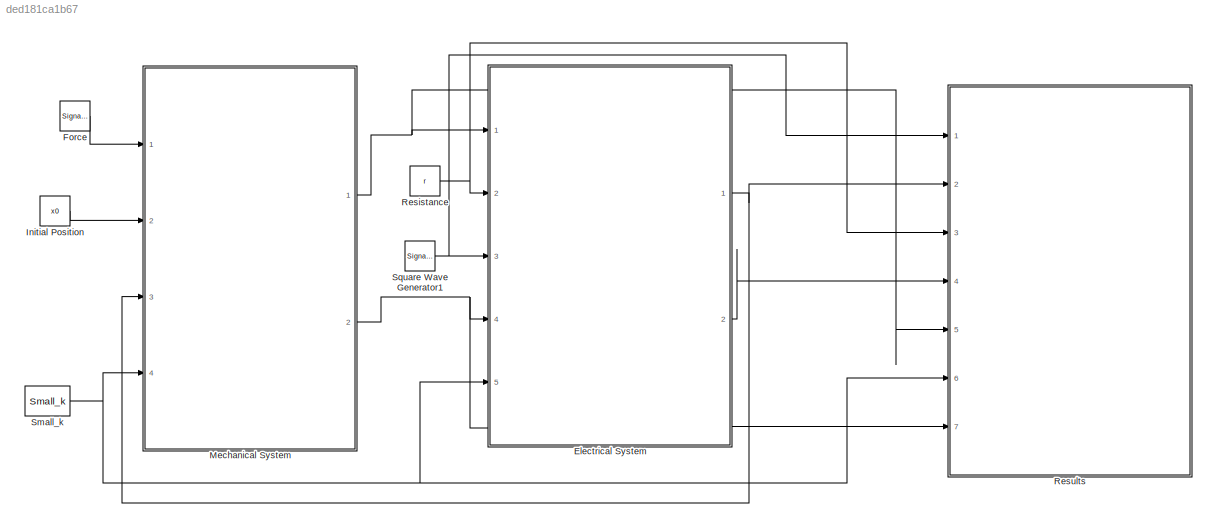
MODEL slx_ded181ca1b67
KIND model
CONFIG AbsTol = auto
CONFIG EnableMultiTasking = off
CONFIG FixedStep = auto
CONFIG MaxStep = auto
CONFIG MinStep = auto
CONFIG RelTol = 1e-3
CONFIG SampleTimeConstraint = Unconstrained
CONFIG SolverName = VariableStepAuto
CONFIG StartTime = 0.0
CONFIG StopTime = 1
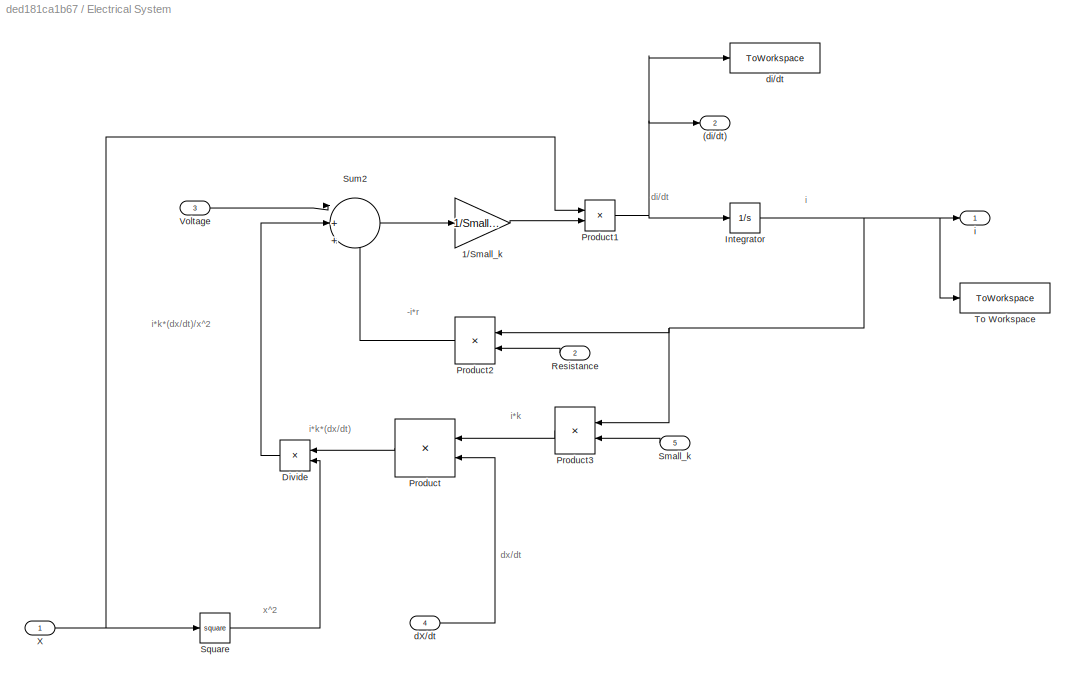
BLOCK [SubSystem] Electrical System
  Ports = [5, 2]
  RequestExecContextInheritance = off
BLOCK [Outport] Electrical System/(di//dt)
  Port = 2
BLOCK [Gain] Electrical System/1//Small_k
  Gain = 1/Small_k
BLOCK [Product] Electrical System/Divide
  Inputs = */
  Ports = [2, 1]
BLOCK [Integrator] Electrical System/Integrator
  Ports = [1, 1]
BLOCK [Product] Electrical System/Product
  Ports = [2, 1]
BLOCK [Product] Electrical System/Product1
  Ports = [2, 1]
BLOCK [Product] Electrical System/Product2
  Ports = [2, 1]
BLOCK [Product] Electrical System/Product3
  Ports = [2, 1]
BLOCK [Inport] Electrical System/Resistance
  Port = 2
BLOCK [Inport] Electrical System/Small_k
  Port = 5
BLOCK [Math] Electrical System/Square
  Operator = square
  Ports = [1, 1]
BLOCK [Sum] Electrical System/Sum2
  Inputs = |+++
  Ports = [3, 1]
BLOCK [ToWorkspace] Electrical System/To Workspace
  FixptAsFi = on
  MaxDataPoints = inf
  Ports = [1]
  SampleTime = -1
  VariableName = i
BLOCK [Inport] Electrical System/Voltage
  Port = 3
BLOCK [Inport] Electrical System/X
BLOCK [Inport] Electrical System/dX//dt
  Port = 4
BLOCK [ToWorkspace] Electrical System/di//dt
  FixptAsFi = on
  MaxDataPoints = inf
  Ports = [1]
  SampleTime = -1
  VariableName = di_dt
BLOCK [Outport] Electrical System/i
BLOCK [SignalGenerator] Force
  Amplitude = 4
  Ports = [0, 1]
  Units = rad/sec
  WaveForm = square
BLOCK [Constant] Initial Position
  Value = x0
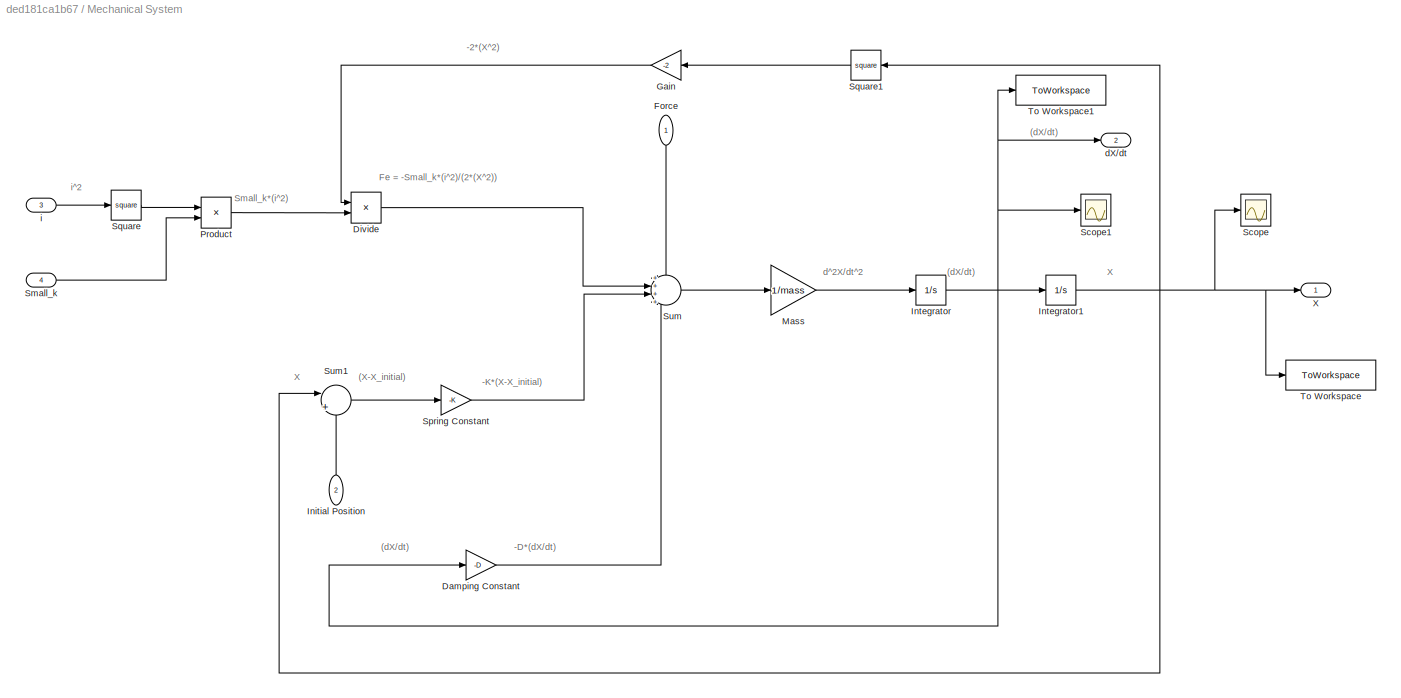
BLOCK [SubSystem] Mechanical System
  Ports = [4, 2]
  RequestExecContextInheritance = off
BLOCK [Gain] Mechanical System/Damping Constant
  Gain = -D
BLOCK [Product] Mechanical System/Divide
  Inputs = /*
  Ports = [2, 1]
BLOCK [Inport] Mechanical System/Force
  NameLocation = left
BLOCK [Gain] Mechanical System/Gain
  Gain = -2
BLOCK [Inport] Mechanical System/Initial Position
  Port = 2
BLOCK [Integrator] Mechanical System/Integrator
  Ports = [1, 1]
BLOCK [Integrator] Mechanical System/Integrator1
  InitialCondition = 0.000001
  Ports = [1, 1]
BLOCK [Gain] Mechanical System/Mass
  Gain = 1/mass
BLOCK [Product] Mechanical System/Product
  Ports = [2, 1]
BLOCK [Scope] Mechanical System/Scope
  Floating = off
  NumInputPorts = 1
  Ports = [1]
  ScopeSpecificationString = Simulink.scopes.TimeScopeBlockCfg('CurrentConfiguration', extmgr.ConfigurationSet(extmgr.Configuration('Core','General UI',true),extmgr.Configuration('Core','Source UI',true),extmgr.Configuration('Sources','WiredSimulink',true),extmgr.Configuration('Visuals','Time Domain',true),extmgr.Configuration('Tools','Plot Navigation',true),extmgr.Configuration('Tools','Measurements',true)),'Version','2021b'...<+1ch>
BLOCK [Scope] Mechanical System/Scope1
  Floating = off
  NumInputPorts = 1
  Ports = [1]
  ScopeSpecificationString = Simulink.scopes.TimeScopeBlockCfg('CurrentConfiguration', extmgr.ConfigurationSet(extmgr.Configuration('Core','General UI',true),extmgr.Configuration('Core','Source UI',true),extmgr.Configuration('Sources','WiredSimulink',true,'DataLoggingVariableName','ScopeData1'),extmgr.Configuration('Visuals','Time Domain',true),extmgr.Configuration('Tools','Plot Navigation',true),extmgr.Configuration('Tools',...<+40ch>
BLOCK [Inport] Mechanical System/Small_k
  Port = 4
BLOCK [Gain] Mechanical System/Spring Constant
  Gain = -K
BLOCK [Math] Mechanical System/Square
  Operator = square
  Ports = [1, 1]
BLOCK [Math] Mechanical System/Square1
  Operator = square
  Ports = [1, 1]
BLOCK [Sum] Mechanical System/Sum
  Inputs = ++++
  Ports = [4, 1]
BLOCK [Sum] Mechanical System/Sum1
  Inputs = |++
  Ports = [2, 1]
BLOCK [ToWorkspace] Mechanical System/To Workspace
  FixptAsFi = on
  MaxDataPoints = inf
  Ports = [1]
  SampleTime = -1
  VariableName = X
BLOCK [ToWorkspace] Mechanical System/To Workspace1
  FixptAsFi = on
  MaxDataPoints = inf
  Ports = [1]
  SampleTime = -1
  VariableName = velocity
BLOCK [Outport] Mechanical System/X
BLOCK [Outport] Mechanical System/dX//dt
  Port = 2
BLOCK [Inport] Mechanical System/i
  Port = 3
BLOCK [Constant] Resistance
  Value = r
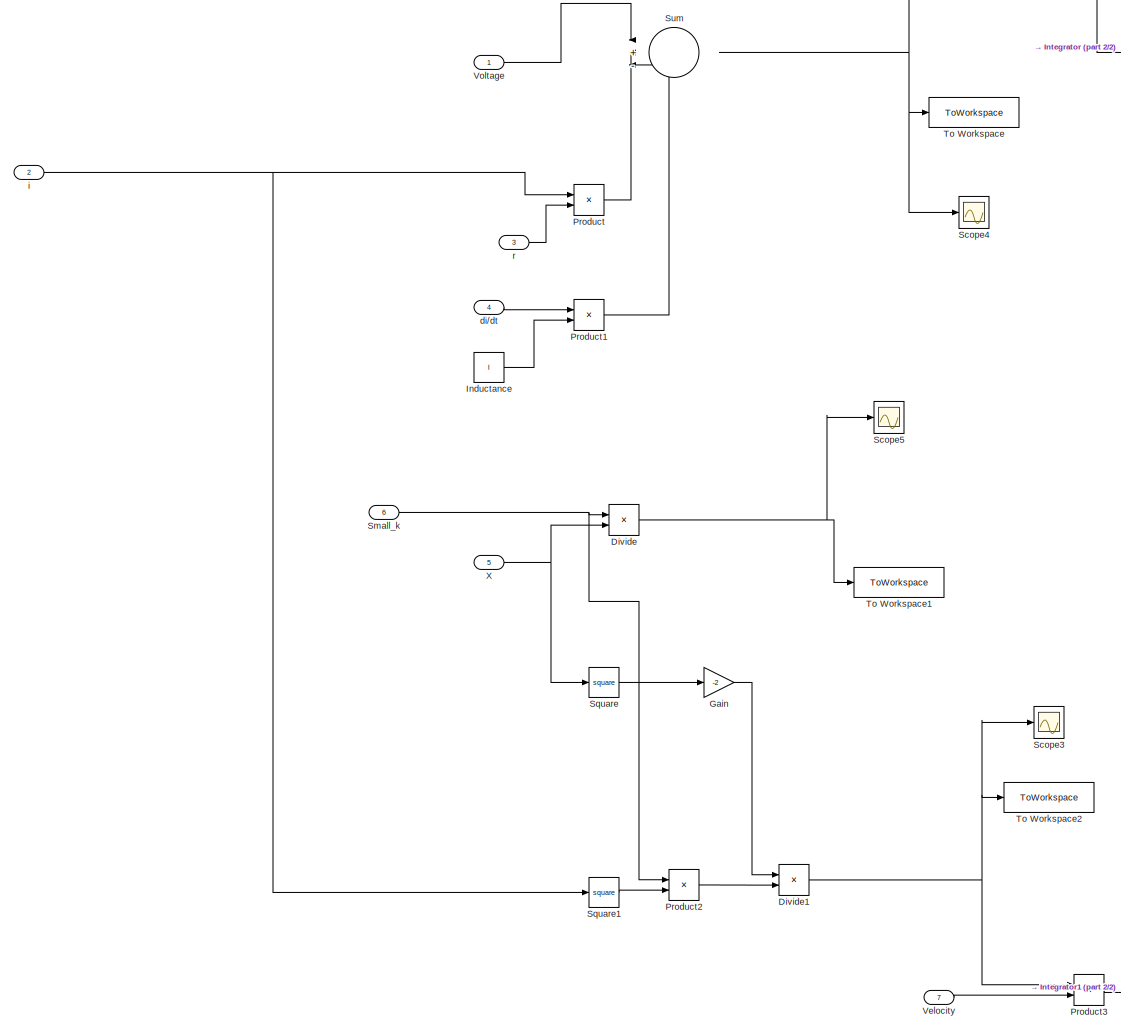
[diagram: Results - part 1/2, center side, full height]
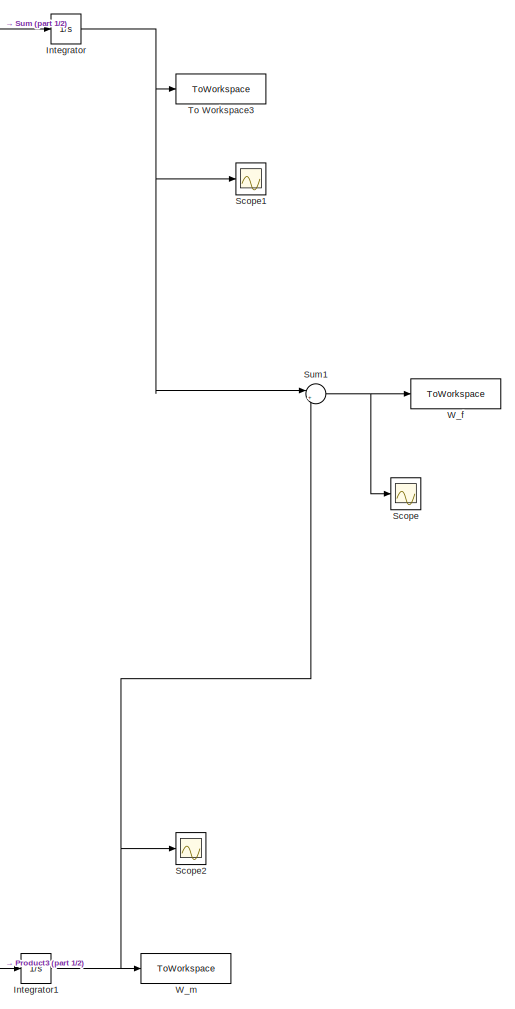
[diagram: Results - part 2/2, right side, full height]
BLOCK [SubSystem] Results
  Ports = [7]
  RequestExecContextInheritance = off
BLOCK [Product] Results/Divide
  Inputs = */
  Ports = [2, 1]
BLOCK [Product] Results/Divide1
  Inputs = /*
  Ports = [2, 1]
BLOCK [Gain] Results/Gain
  Gain = -2
BLOCK [Constant] Results/Inductance
  Value = l
BLOCK [Integrator] Results/Integrator
  Ports = [1, 1]
BLOCK [Integrator] Results/Integrator1
  Ports = [1, 1]
BLOCK [Product] Results/Product
  Ports = [2, 1]
BLOCK [Product] Results/Product1
  Ports = [2, 1]
BLOCK [Product] Results/Product2
  Ports = [2, 1]
BLOCK [Product] Results/Product3
  Ports = [2, 1]
BLOCK [Scope] Results/Scope
  Floating = off
  NumInputPorts = 1
  Ports = [1]
  ScopeSpecificationString = Simulink.scopes.TimeScopeBlockCfg('CurrentConfiguration', extmgr.ConfigurationSet(extmgr.Configuration('Core','General UI',true),extmgr.Configuration('Core','Source UI',true),extmgr.Configuration('Sources','WiredSimulink',true,'DataLoggingVariableName','ScopeData1'),extmgr.Configuration('Visuals','Time Domain',true),extmgr.Configuration('Tools','Plot Navigation',true),extmgr.Configuration('Tools',...<+40ch>
BLOCK [Scope] Results/Scope1
  Floating = off
  NumInputPorts = 1
  Ports = [1]
  ScopeSpecificationString = Simulink.scopes.TimeScopeBlockCfg('CurrentConfiguration', extmgr.ConfigurationSet(extmgr.Configuration('Core','General UI',true),extmgr.Configuration('Core','Source UI',true),extmgr.Configuration('Sources','WiredSimulink',true,'DataLoggingVariableName','ScopeData2'),extmgr.Configuration('Visuals','Time Domain',true),extmgr.Configuration('Tools','Plot Navigation',true),extmgr.Configuration('Tools',...<+40ch>
BLOCK [Scope] Results/Scope2
  Floating = off
  NumInputPorts = 1
  Ports = [1]
  ScopeSpecificationString = Simulink.scopes.TimeScopeBlockCfg('CurrentConfiguration', extmgr.ConfigurationSet(extmgr.Configuration('Core','General UI',true),extmgr.Configuration('Core','Source UI',true),extmgr.Configuration('Sources','WiredSimulink',true,'DataLoggingVariableName','ScopeData3'),extmgr.Configuration('Visuals','Time Domain',true),extmgr.Configuration('Tools','Plot Navigation',true),extmgr.Configuration('Tools',...<+40ch>
BLOCK [Scope] Results/Scope3
  Floating = off
  NumInputPorts = 1
  Ports = [1]
  ScopeSpecificationString = Simulink.scopes.TimeScopeBlockCfg('CurrentConfiguration', extmgr.ConfigurationSet(extmgr.Configuration('Core','General UI',true),extmgr.Configuration('Core','Source UI',true),extmgr.Configuration('Sources','WiredSimulink',true,'DataLoggingVariableName','ScopeData4'),extmgr.Configuration('Visuals','Time Domain',true),extmgr.Configuration('Tools','Plot Navigation',true),extmgr.Configuration('Tools',...<+40ch>
BLOCK [Scope] Results/Scope4
  Floating = off
  NumInputPorts = 1
  Ports = [1]
  ScopeSpecificationString = Simulink.scopes.TimeScopeBlockCfg('CurrentConfiguration', extmgr.ConfigurationSet(extmgr.Configuration('Core','General UI',true),extmgr.Configuration('Core','Source UI',true),extmgr.Configuration('Sources','WiredSimulink',true,'DataLoggingVariableName','ScopeData5'),extmgr.Configuration('Visuals','Time Domain',true),extmgr.Configuration('Tools','Plot Navigation',true),extmgr.Configuration('Tools',...<+40ch>
BLOCK [Scope] Results/Scope5
  Floating = off
  NumInputPorts = 1
  Ports = [1]
  ScopeSpecificationString = Simulink.scopes.TimeScopeBlockCfg('CurrentConfiguration', extmgr.ConfigurationSet(extmgr.Configuration('Core','General UI',true),extmgr.Configuration('Core','Source UI',true),extmgr.Configuration('Sources','WiredSimulink',true,'DataLoggingVariableName','ScopeData6'),extmgr.Configuration('Visuals','Time Domain',true),extmgr.Configuration('Tools','Plot Navigation',true),extmgr.Configuration('Tools',...<+40ch>
BLOCK [Inport] Results/Small_k
  Port = 6
BLOCK [Math] Results/Square
  Operator = square
  Ports = [1, 1]
BLOCK [Math] Results/Square1
  Operator = square
  Ports = [1, 1]
BLOCK [Sum] Results/Sum
  Inputs = |+--
  Ports = [3, 1]
BLOCK [Sum] Results/Sum1
  Inputs = |++
  Ports = [2, 1]
BLOCK [ToWorkspace] Results/To Workspace
  FixptAsFi = on
  MaxDataPoints = inf
  Ports = [1]
  SampleTime = -1
  VariableName = ef
BLOCK [ToWorkspace] Results/To Workspace1
  FixptAsFi = on
  MaxDataPoints = inf
  Ports = [1]
  SampleTime = -1
  VariableName = Lamda
BLOCK [ToWorkspace] Results/To Workspace2
  FixptAsFi = on
  MaxDataPoints = inf
  Ports = [1]
  SampleTime = -1
  VariableName = fe
BLOCK [ToWorkspace] Results/To Workspace3
  FixptAsFi = on
  MaxDataPoints = inf
  Ports = [1]
  SampleTime = -1
  VariableName = W_e
BLOCK [Inport] Results/Velocity
  Port = 7
BLOCK [Inport] Results/Voltage
BLOCK [ToWorkspace] Results/W_f
  FixptAsFi = on
  MaxDataPoints = inf
  Ports = [1]
  SampleTime = -1
  VariableName = W_f
BLOCK [ToWorkspace] Results/W_m
  FixptAsFi = on
  MaxDataPoints = inf
  Ports = [1]
  SampleTime = -1
  VariableName = W_m
BLOCK [Inport] Results/X
  Port = 5
BLOCK [Inport] Results/di//dt
  Port = 4
BLOCK [Inport] Results/i
  Port = 2
BLOCK [Inport] Results/r
  Port = 3
BLOCK [Constant] Small_k
  Value = Small_k
BLOCK [SignalGenerator] Square Wave Generator1
  Amplitude = 5
  Ports = [0, 1]
  WaveForm = square
ANNOTATION Electrical System: -i*r
ANNOTATION Electrical System: di/dt
ANNOTATION Electrical System: dx/dt
ANNOTATION Electrical System: i
ANNOTATION Electrical System: i*k
ANNOTATION Electrical System: i*k*(dx/dt)
ANNOTATION Electrical System: i*k*(dx/dt)/x^2
ANNOTATION Electrical System: x^2
ANNOTATION Mechanical System: (X-X_initial)
ANNOTATION Mechanical System: (dX/dt)
ANNOTATION Mechanical System: -2*(X^2)
ANNOTATION Mechanical System: -D*(dX/dt)
ANNOTATION Mechanical System: -K*(X-X_initial)
ANNOTATION Mechanical System: Fe = -Small_k*(i^2)/(2*(X^2))
ANNOTATION Mechanical System: Small_k*(i^2)
ANNOTATION Mechanical System: X
ANNOTATION Mechanical System: d^2X/dt^2
ANNOTATION Mechanical System: i^2
LINE Electrical System/1//Small_k:1 -> Electrical System/Product1:2
LINE Electrical System/Divide:1 -> Electrical System/Sum2:2
NET Electrical System/Integrator:1 -> Electrical System/Product2:1, Electrical System/Product3:1, Electrical System/To Workspace:1, Electrical System/i:1
NET Electrical System/Product1:1 -> Electrical System/(di//dt):1, Electrical System/Integrator:1, Electrical System/di//dt:1
LINE Electrical System/Product2:1 -> Electrical System/Sum2:3
LINE Electrical System/Product3:1 -> Electrical System/Product:1
LINE Electrical System/Product:1 -> Electrical System/Divide:1
LINE Electrical System/Resistance:1 -> Electrical System/Product2:2
LINE Electrical System/Small_k:1 -> Electrical System/Product3:2
LINE Electrical System/Square:1 -> Electrical System/Divide:2
LINE Electrical System/Sum2:1 -> Electrical System/1//Small_k:1
LINE Electrical System/Voltage:1 -> Electrical System/Sum2:1
NET Electrical System/X:1 -> Electrical System/Product1:1, Electrical System/Square:1
LINE Electrical System/dX//dt:1 -> Electrical System/Product:2
NET Electrical System:1 -> Mechanical System:3, Results:2
LINE Electrical System:2 -> Results:4
LINE Force:1 -> Mechanical System:1
LINE Initial Position:1 -> Mechanical System:2
LINE Mechanical System/Damping Constant:1 -> Mechanical System/Sum:4
LINE Mechanical System/Divide:1 -> Mechanical System/Sum:2
LINE Mechanical System/Force:1 -> Mechanical System/Sum:1
LINE Mechanical System/Gain:1 -> Mechanical System/Divide:1
LINE Mechanical System/Initial Position:1 -> Mechanical System/Sum1:2
NET Mechanical System/Integrator1:1 -> Mechanical System/Scope:1, Mechanical System/Square1:1, Mechanical System/Sum1:1, Mechanical System/To Workspace:1, Mechanical System/X:1
NET Mechanical System/Integrator:1 -> Mechanical System/Damping Constant:1, Mechanical System/Integrator1:1, Mechanical System/Scope1:1, Mechanical System/To Workspace1:1, Mechanical System/dX//dt:1
LINE Mechanical System/Mass:1 -> Mechanical System/Integrator:1
LINE Mechanical System/Product:1 -> Mechanical System/Divide:2
LINE Mechanical System/Small_k:1 -> Mechanical System/Product:2
LINE Mechanical System/Spring Constant:1 -> Mechanical System/Sum:3
LINE Mechanical System/Square1:1 -> Mechanical System/Gain:1
LINE Mechanical System/Square:1 -> Mechanical System/Product:1
LINE Mechanical System/Sum1:1 -> Mechanical System/Spring Constant:1
LINE Mechanical System/Sum:1 -> Mechanical System/Mass:1
LINE Mechanical System/i:1 -> Mechanical System/Square:1
NET Mechanical System:1 -> Electrical System:1, Results:5
NET Mechanical System:2 -> Electrical System:4, Results:7
NET Resistance:1 -> Electrical System:2, Results:3
NET Results/Divide1:1 -> Results/Product3:1, Results/Scope3:1, Results/To Workspace2:1
NET Results/Divide:1 -> Results/Scope5:1, Results/To Workspace1:1
LINE Results/Gain:1 -> Results/Divide1:1
LINE Results/Inductance:1 -> Results/Product1:2
NET Results/Integrator1:1 -> Results/Scope2:1, Results/Sum1:2, Results/W_m:1
NET Results/Integrator:1 -> Results/Scope1:1, Results/Sum1:1, Results/To Workspace3:1
LINE Results/Product1:1 -> Results/Sum:3
LINE Results/Product2:1 -> Results/Divide1:2
LINE Results/Product3:1 -> Results/Integrator1:1
LINE Results/Product:1 -> Results/Sum:2
NET Results/Small_k:1 -> Results/Divide:1, Results/Product2:1
LINE Results/Square1:1 -> Results/Product2:2
LINE Results/Square:1 -> Results/Gain:1
NET Results/Sum1:1 -> Results/Scope:1, Results/W_f:1
NET Results/Sum:1 -> Results/Integrator:1, Results/Scope4:1, Results/To Workspace:1
LINE Results/Velocity:1 -> Results/Product3:2
LINE Results/Voltage:1 -> Results/Sum:1
NET Results/X:1 -> Results/Divide:2, Results/Square:1
LINE Results/di//dt:1 -> Results/Product1:1
NET Results/i:1 -> Results/Product:1, Results/Square1:1
LINE Results/r:1 -> Results/Product:2
NET Small_k:1 -> Electrical System:5, Mechanical System:4, Results:6
NET Square Wave Generator1:1 -> Electrical System:3, Results:1
note: NET lines group one-source signal fan-out (src -> all destinations, sorted); 1:1 wires keep LINE
